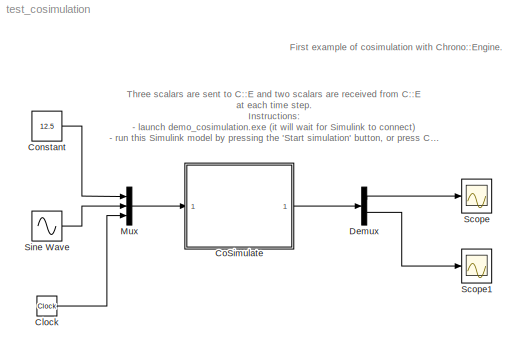
MODEL test_cosimulation
KIND model
BLOCK [Clock] Clock
  Decimation = 10
  SID = 9
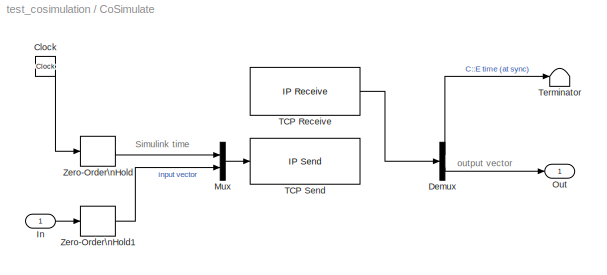
BLOCK [SubSystem] CoSimulate
  Description = This block can be used to exchange data with Chrono::Engine.                                                                                      \nA Chrono::Engine program with a running ChCosimulation inferface must be started, it will work as a server; then the Simulink program must be run.\nNote! check that the dimensions of the exchanged vectors do match!
  FunctionWithSeparateData = off
  MaskCallbackString = ||||
  MaskDisplay = image(imread('block_logo.png'))\ndisp('C::E                   ')
  MaskEnableString = on,on,on,on,on
  MaskHideContents = off
  MaskIconFrame = on
  MaskIconOpaque = on
  MaskIconRotate = none
  MaskIconUnits = autoscale
  MaskInitialization = block_receive = [gcb, '/TCP Receive'];\nset_param(block_receive, 'SampleTime', num2str(com_step));\nset_param(block_receive, 'Host', host_name);\nset_param(block_receive, 'Port', num2str(tcp_port));\nset_param(block_receive, 'DataSize', num2str(tcp_data_size+1));\nset_param(block_receive, 'Timeout', num2str(tcp_timeout));\nblock_send = [gcb, '/TCP Send'];\nset_param(block_send, 'Host', host_name);...<+51ch>
  MaskPortRotate = default
  MaskPromptString = Communication step size|N. of scalars received from C::E (as block output)|TCP host name (ex. 'localhost', or 'www.myhost.com')|TCP port (ex. 50007)|TCP timeout (seconds)
  MaskStyleString = edit,edit,edit,edit,edit
  MaskToolTipString = on,on,on,on,on
  MaskTunableValueString = off,off,off,off,off
  MaskValueString = 0.2|2|localhost|50009|15
  MaskVariables = com_step=@1;tcp_data_size=@2;host_name=&3;tcp_port=&4;tcp_timeout=&5;
  MaskVisibilityString = on,on,on,on,on
  MinAlgLoopOccurrences = off
  Opaque = off
  Ports = [1, 1]
  PropExecContextOutsideSubsystem = off
  RTWSystemCode = Auto
  RequestExecContextInheritance = off
  SID = 13
BLOCK [Clock] CoSimulate/Clock
  Decimation = 10
  SID = 19
BLOCK [Demux] CoSimulate/Demux
  DisplayOption = bar
  Outputs = [1 -1]
  Ports = [1, 2]
  SID = 25
BLOCK [Inport] CoSimulate/In
  IconDisplay = Port number
  SID = 16
BLOCK [Mux] CoSimulate/Mux
  DisplayOption = bar
  Inputs = 2
  Ports = [2, 1]
  SID = 6
BLOCK [Outport] CoSimulate/Out
  IconDisplay = Port number
  SID = 14
BLOCK [Reference] CoSimulate/TCP Receive  REF=instrumentlib/TCP//IP Receive
  ByteOrder = LittleEndian
  DataSize = 3
  DataType = double
  DialogController = instrumentcreatedialog
  DialogControllerArgs = DataTag0
  EnableBlockingMode = on
  Host = localhost
  Port = 50009
  Ports = [0, 1]
  Priority = 1
  SID = 11
  SampleTime = 0.2
  SourceBlock = instrumentlib/TCP//IP Receive
  SourceType = TCP/IP Receive
  Timeout = 15
BLOCK [Reference] CoSimulate/TCP Send  REF=instrumentlib/TCP//IP Send
  ByteOrder = LittleEndian
  DialogController = instrumentcreatedialog
  DialogControllerArgs = DataTag1
  EnableBlockingMode = off
  Host = localhost
  Port = 50009
  Ports = [1]
  Priority = 2
  SID = 2
  SourceBlock = instrumentlib/TCP//IP Send
  SourceType = TCP/IP Send
  Timeout = 10
BLOCK [Terminator] CoSimulate/Terminator
  SID = 26
BLOCK [ZeroOrderHold] CoSimulate/Zero-Order\nHold
  SID = 3
  SampleTime = com_step
BLOCK [ZeroOrderHold] CoSimulate/Zero-Order\nHold1
  SID = 7
  SampleTime = com_step
BLOCK [Constant] Constant
  OutDataType = fixdt(1, 16)
  OutScaling = 2^0
  SID = 4
  Value = 12.5
BLOCK [Demux] Demux
  DisplayOption = bar
  Outputs = 2
  Ports = [1, 2]
  SID = 27
BLOCK [Mux] Mux
  DisplayOption = bar
  Inputs = 3
  Ports = [3, 1]
  SID = 24
BLOCK [Scope] Scope
  DataFormat = StructureWithTime
  Floating = off
  NumInputPorts = 1
  Ports = [1]
  SID = 18
  SampleTime = 0
  ZoomMode = yonly
BLOCK [Scope] Scope1
  DataFormat = StructureWithTime
  Floating = off
  NumInputPorts = 1
  Ports = [1]
  SID = 28
  SampleTime = 0
  SaveName = ScopeData1
  ZoomMode = yonly
BLOCK [Sin] Sine Wave
  Amplitude = 5
  Bias = 0
  Frequency = 0.5
  Offset = 0
  Phase = 0
  Ports = [0, 1]
  SID = 1
  SampleTime = 0
  Samples = 10
ANNOTATION (root): First example of cosimulation with Chrono::Engine.
ANNOTATION (root): Three scalars are sent to C::E and two scalars are received from C::E\nat each time step.\nInstructions:\n- launch demo_cosimulation.exe (it will wait for Simulink to connect)\n- run this Simulink model by pressing the 'Start simulation' button, or press Ctrl+T
ANNOTATION CoSimulate: Simulink time
ANNOTATION CoSimulate: output vector
LINE Clock:1 -> Mux:3
LINE CoSimulate/Clock:1 -> CoSimulate/Zero-Order\nHold:1
LINE CoSimulate/Demux:1 -> CoSimulate/Terminator:1
LINE CoSimulate/Demux:2 -> CoSimulate/Out:1
LINE CoSimulate/In:1 -> CoSimulate/Zero-Order\nHold1:1
LINE CoSimulate/Mux:1 -> CoSimulate/TCP Send:1
LINE CoSimulate/TCP Receive:1 -> CoSimulate/Demux:1
LINE CoSimulate/Zero-Order\nHold1:1 -> CoSimulate/Mux:2
LINE CoSimulate/Zero-Order\nHold:1 -> CoSimulate/Mux:1
LINE CoSimulate:1 -> Demux:1
LINE Constant:1 -> Mux:1
LINE Demux:1 -> Scope:1
LINE Demux:2 -> Scope1:1
LINE Mux:1 -> CoSimulate:1
LINE Sine Wave:1 -> Mux:2
